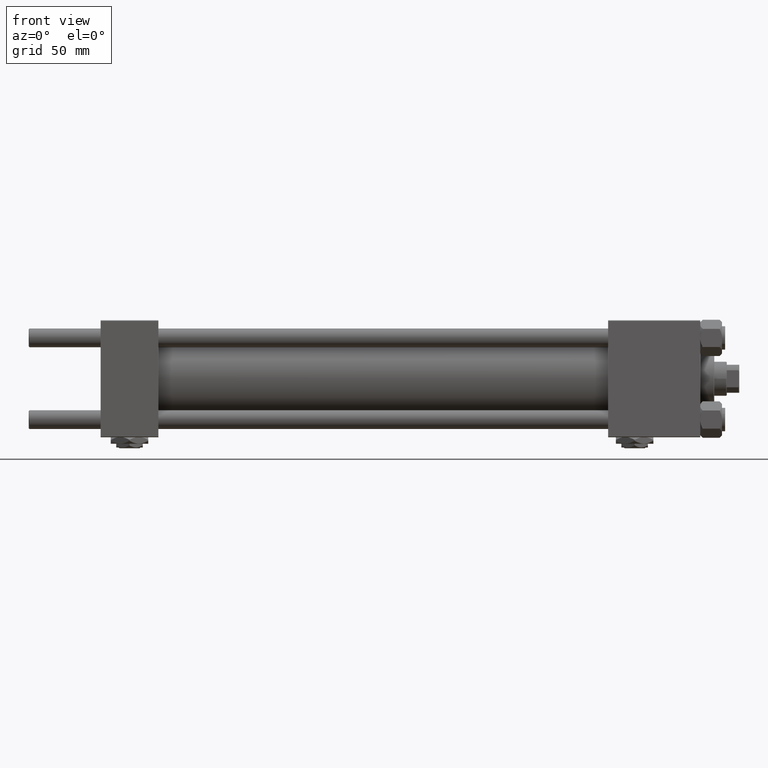
[diagram: clean part render]
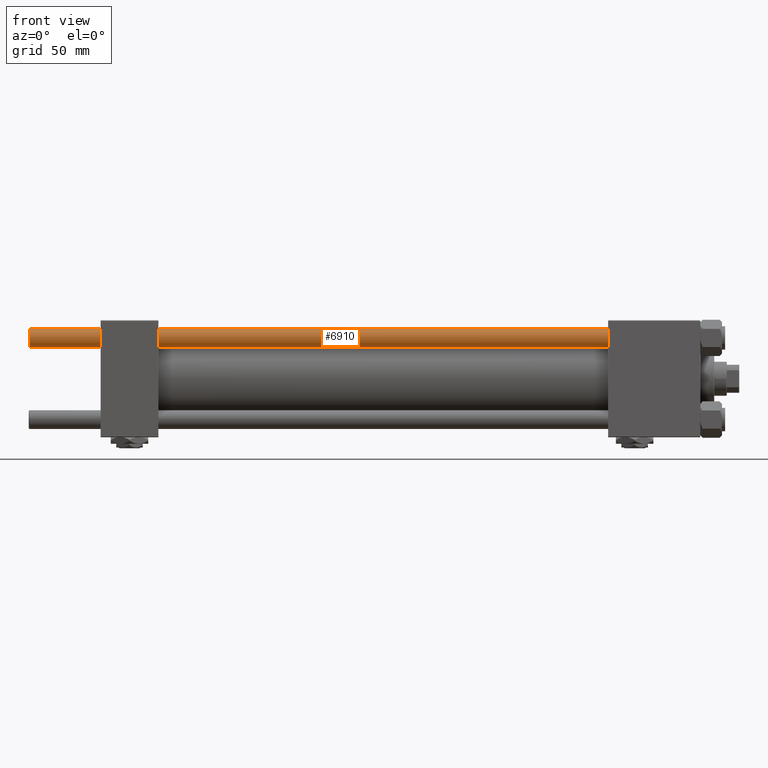
[diagram: same view with one face highlighted and labeled with its STEP entity id]
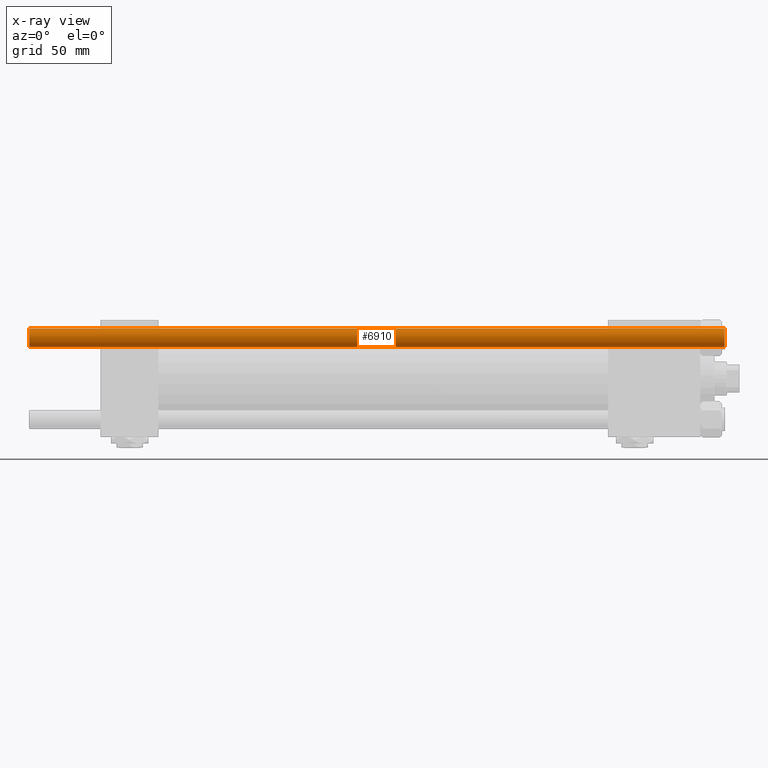
[diagram: x-ray of the same camera — body ghosted, the highlighted face saturated]
A machine part, front view. The second image highlights one B-rep face of the part: STEP entity #6910.
The next image is the same camera in x-ray: the body ghosted, the highlighted face saturated — about 0% of this face is hidden behind the body in this view.
In plain terms, the highlighted cylindrical surface (edge-blend (fillet) strip) has radius 6 mm, axis along (1, -0, 0).
Its self-contained STEP definition (entity closure, byte-faithful):
#78 = AXIS2_PLACEMENT_3D ( 'NONE', #45721, #1993, #5427 ) ;
#1993 = DIRECTION ( 'NONE',  ( -0.000000000000000000, -0.000000000000000000, 1.000000000000000000 ) ) ;
#5427 = DIRECTION ( 'NONE',  ( 1.000000000000000000, 0.000000000000000000, 0.000000000000000000 ) ) ;
#6674 = DIRECTION ( 'NONE',  ( -0.000000000000000000, -0.000000000000000000, -1.000000000000000000 ) ) ;
#6910 = ADVANCED_FACE ( 'NONE', ( #29160 ), #40940, .T. ) ;
#8468 = CARTESIAN_POINT ( 'NONE',  ( 0.000000000000000000, 0.000000000000000000, 446.0000000000000000 ) ) ;
#8991 = DIRECTION ( 'NONE',  ( -1.000000000000000000, 0.000000000000000000, 0.000000000000000000 ) ) ;
#8997 = LINE ( 'NONE', #13192, #11723 ) ;
#9292 = DIRECTION ( 'NONE',  ( 0.000000000000000000, 0.000000000000000000, -1.000000000000000000 ) ) ;
#9731 = ORIENTED_EDGE ( 'NONE', *, *, #20150, .T. ) ;
#10589 = CARTESIAN_POINT ( 'NONE',  ( 6.000000000000000888, 7.347880794884119736E-16, 446.0000000000000000 ) ) ;
#11723 = VECTOR ( 'NONE', #29929, 1000.000000000000000 ) ;
#13192 = CARTESIAN_POINT ( 'NONE',  ( -6.000000000000000888, 0.000000000000000000, 446.0000000000000000 ) ) ;
#13661 = CARTESIAN_POINT ( 'NONE',  ( 6.000000000000000888, 7.347880794884119736E-16, 0.5000000000003890221 ) ) ;
#15147 = EDGE_CURVE ( 'NONE', #16744, #37323, #8997, .T. ) ;
#16744 = VERTEX_POINT ( 'NONE', #27433 ) ;
#17683 = CARTESIAN_POINT ( 'NONE',  ( -6.000000000000000888, 0.000000000000000000, 0.5000000000003890221 ) ) ;
#17954 = ORIENTED_EDGE ( 'NONE', *, *, #15147, .F. ) ;
#18708 = VERTEX_POINT ( 'NONE', #13661 ) ;
#19559 = VERTEX_POINT ( 'NONE', #41482 ) ;
#20150 = EDGE_CURVE ( 'NONE', #18708, #37323, #22681, .T. ) ;
#21546 = EDGE_CURVE ( 'NONE', #19559, #18708, #30499, .T. ) ;
#22681 = CIRCLE ( 'NONE', #78, 6.000000000000000888 ) ;
#25147 = EDGE_CURVE ( 'NONE', #16744, #19559, #26967, .T. ) ;
#26857 = VECTOR ( 'NONE', #6674, 1000.000000000000000 ) ;
#26967 = CIRCLE ( 'NONE', #31161, 6.000000000000000888 ) ;
#27433 = CARTESIAN_POINT ( 'NONE',  ( -6.000000000000000888, 0.000000000000000000, 445.5000000000003411 ) ) ;
#29160 = FACE_OUTER_BOUND ( 'NONE', #44869, .T. ) ;
#29929 = DIRECTION ( 'NONE',  ( -0.000000000000000000, -0.000000000000000000, -1.000000000000000000 ) ) ;
#30499 = LINE ( 'NONE', #10589, #26857 ) ;
#31161 = AXIS2_PLACEMENT_3D ( 'NONE', #49329, #9292, #36819 ) ;
#31354 = ORIENTED_EDGE ( 'NONE', *, *, #21546, .T. ) ;
#31872 = ORIENTED_EDGE ( 'NONE', *, *, #25147, .T. ) ;
#36819 = DIRECTION ( 'NONE',  ( 1.000000000000000000, 0.000000000000000000, 0.000000000000000000 ) ) ;
#37323 = VERTEX_POINT ( 'NONE', #17683 ) ;
#40940 = CYLINDRICAL_SURFACE ( 'NONE', #41522, 6.000000000000000888 ) ;
#41482 = CARTESIAN_POINT ( 'NONE',  ( 6.000000000000000888, 7.347880794884119736E-16, 445.5000000000003411 ) ) ;
#41522 = AXIS2_PLACEMENT_3D ( 'NONE', #8468, #44082, #8991 ) ;
#44082 = DIRECTION ( 'NONE',  ( -0.000000000000000000, -0.000000000000000000, -1.000000000000000000 ) ) ;
#44869 = EDGE_LOOP ( 'NONE', ( #31872, #31354, #9731, #17954 ) ) ;
#45721 = CARTESIAN_POINT ( 'NONE',  ( 0.000000000000000000, 0.000000000000000000, 0.5000000000003890221 ) ) ;
#49329 = CARTESIAN_POINT ( 'NONE',  ( 0.000000000000000000, 0.000000000000000000, 445.5000000000003411 ) ) ;